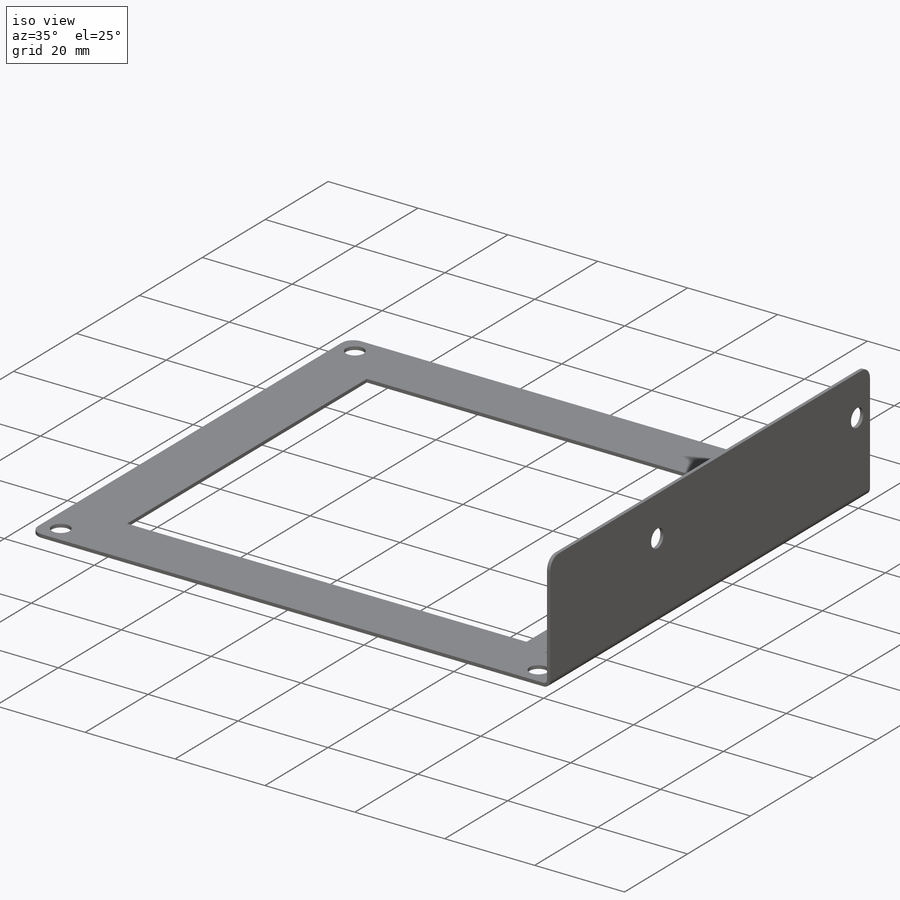
[diagram: iso view]
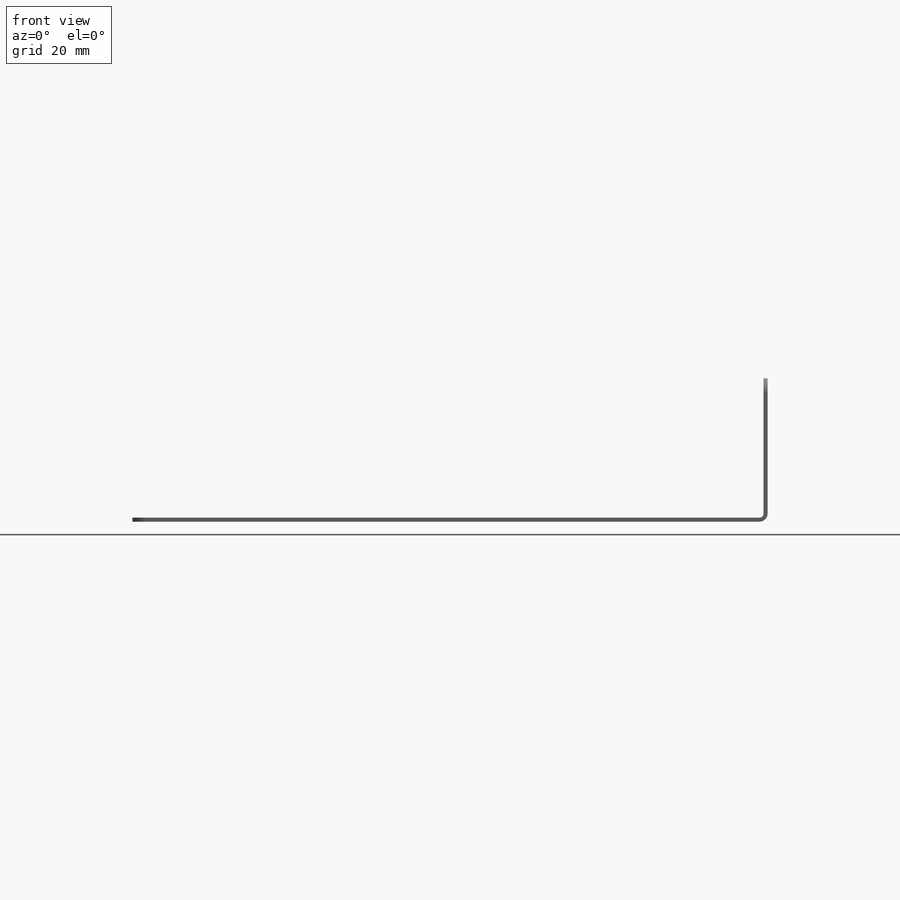
[diagram: front view]
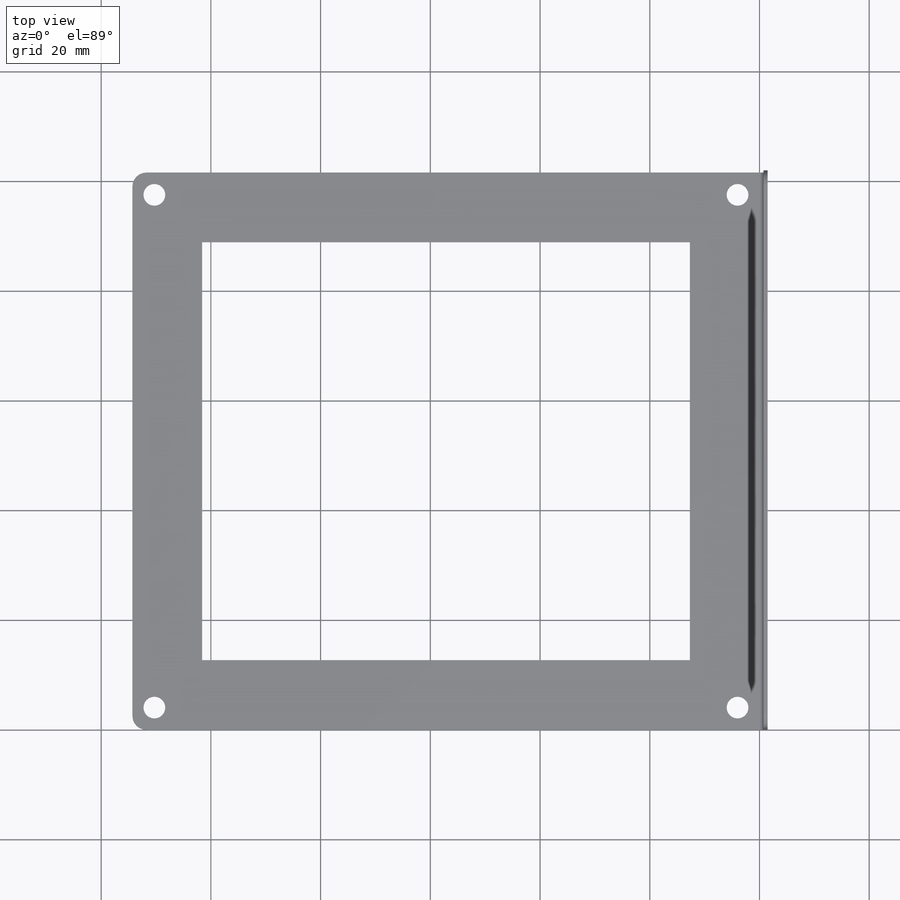
[diagram: top view]
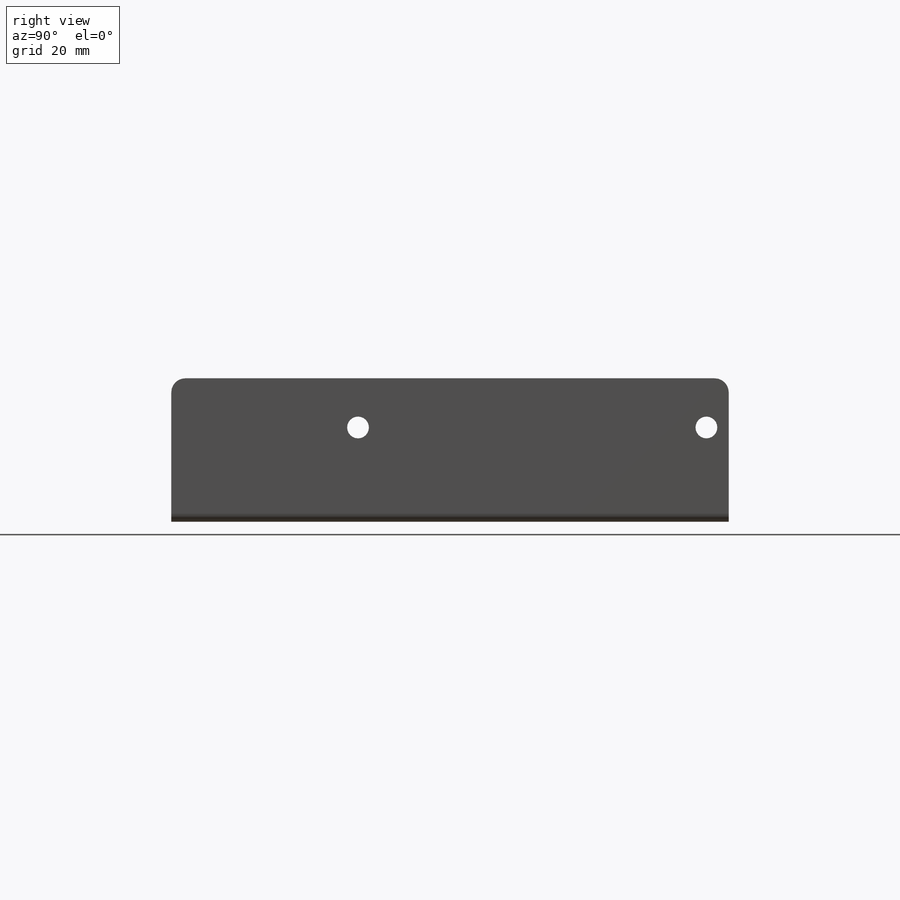
[diagram: right view]
SOLIDWORKS PART (.sldprt)
format: sldprt  version: not decoded by parser v0  size: 293,376 bytes
history: native  units: mm
features: sketch x9, sheet_metal_op x2, hole x2, material x1, cut_extrude x1 + 1 further entry (+12 scaffold rows collapsed; 1 parser-record rows omitted)
feature tree (29):
  scaffold x12  (default folders/planes/origin — collapsed)
  material  "Material <not specified>"
  sketch  "Sketch1"  dims[D1=101.6mm D2=114.3mm D3=12.7mm]
  sheet_metal_op  "Sheet-Metal2"
  sheet_metal_op  "Base-Flange2"
  sketch  "Sketch4"  dims[c1.D1=0.7366mm c1.D4=90.0deg c1.D5=1.0 c1.D8=0.3683mm c1.D9=0.3683mm c2.D1=0.7366mm c2.D2=500.0mm c2.D3=0.0mm c2.D6=10.0mm c2.D7=25.4mm]
  hole  "5/32 (0.15625) Diameter Hole1"  Diameter=3.96875mm Depth=0.7366mm
  sketch  "Sketch7"  dims[c1.D1=4.572mm c1.D2=4.572mm c1.D3=4.572mm c1.D4=4.572mm c1.D5=106.299mm c1.D6=106.299mm c2.D1=93.472mm]
  sketch  "Sketch6"  dims[hole-wizard template sketch: 34 standard entries collapsed; hole parameters kept: c7.D1=25.4mm c7.D2=101.6mm c7.D3=31.75mm c7.D4=~3.666174mm c7.D5=30.48mm c7.D6=~9.919017mm c8.D1=25.4mm c8.D2=101.6mm c8.D3=31.75mm c8.D4=~3.666174mm c8.Thru Hole Dia.=~3.96875mm c8.Thru Hole Depth=0.7366mm]
  hole  "5/32 (0.15625) Diameter Hole2"  Diameter=3.96875mm Depth=0.7366mm
  sketch  "Sketch11"  dims[D1=4.064mm D2=63.5mm]
  sketch  "Sketch10"  dims[hole-wizard template sketch: 34 standard entries collapsed; hole parameters kept: c7.D1=25.4mm c7.D2=101.6mm c7.D3=31.75mm c7.D4=~3.666174mm c7.D5=30.48mm c7.D6=~9.919017mm c8.D1=25.4mm c8.D2=101.6mm c8.D3=31.75mm c8.D4=~3.666174mm c8.Thru Hole Dia.=~3.96875mm c8.Thru Hole Depth=0.7366mm]
  sketch  "Sketch13"  dims[c1.D1=95.25mm c1.D2=~75.486874mm c2.D1=12.7mm c2.D2=12.7mm]
  cut_extrude  "Cut-Extrude1"  Depth=2.54mm
  "Flat-Pattern2"
  sketch  "Bend-Lines2"
  sketch  "Bounding-Box2"
  parser-record x1  (decoder bookkeeping rows leaked as tree rows — omitted from the tree; the rows remain in map.json)
decode coverage: 10 of 14 modeling features carry decoded parameters; 1 rows unclassified (native names shown)
note: ~ marks probable driven/reference dimensions
note: suppression state not decoded; provenance and decode notes live in map.json
